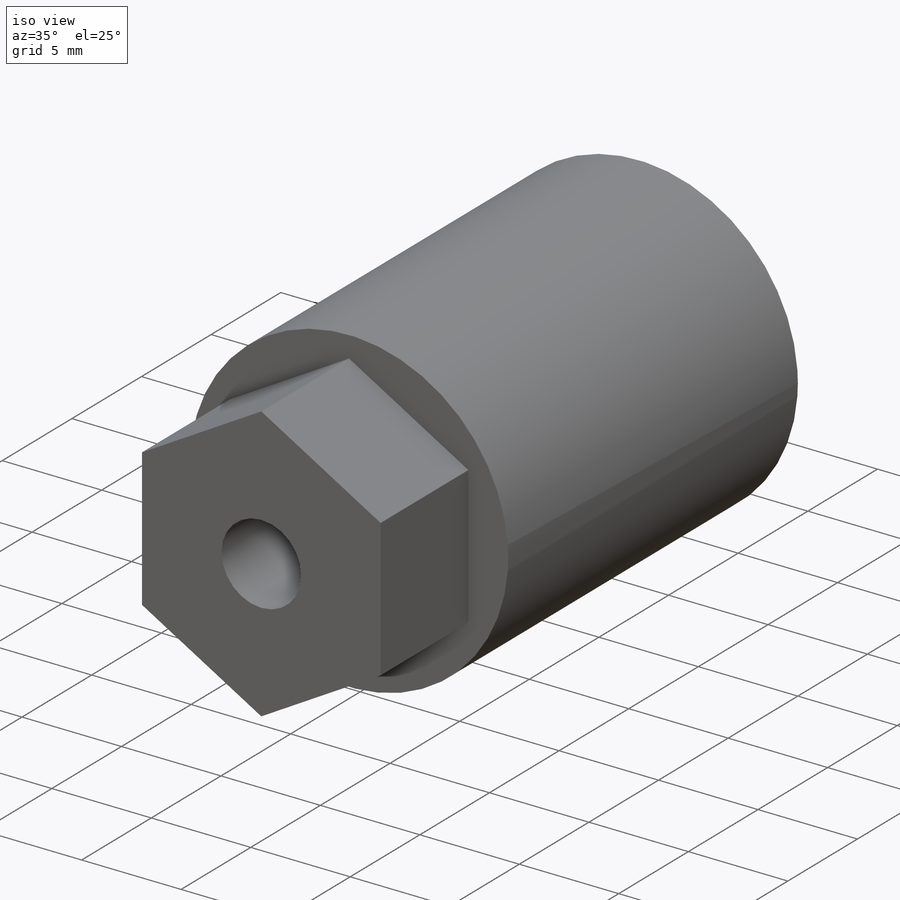
[diagram: iso view]
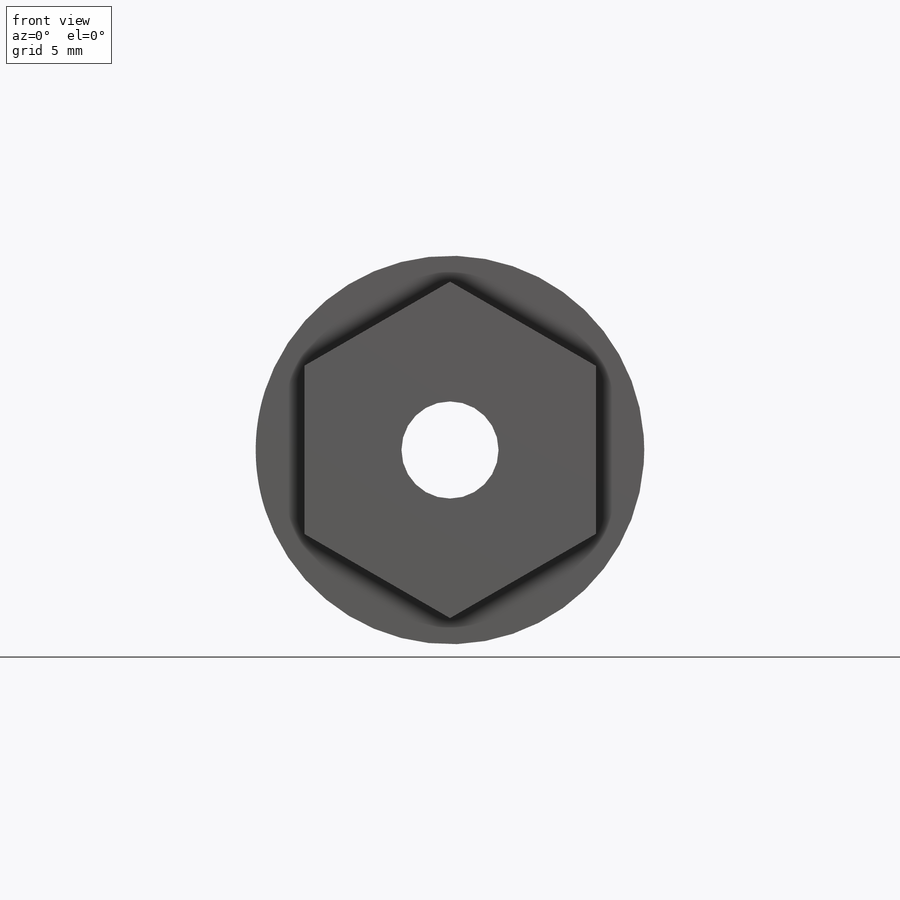
[diagram: front view]
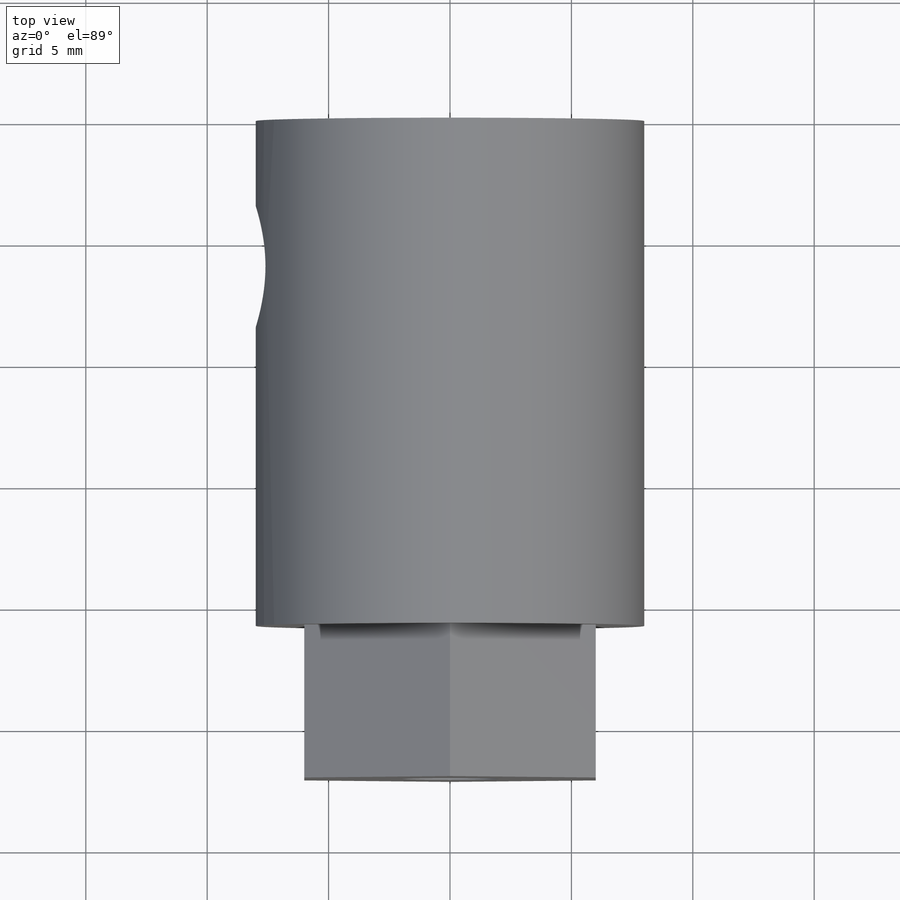
[diagram: top view]
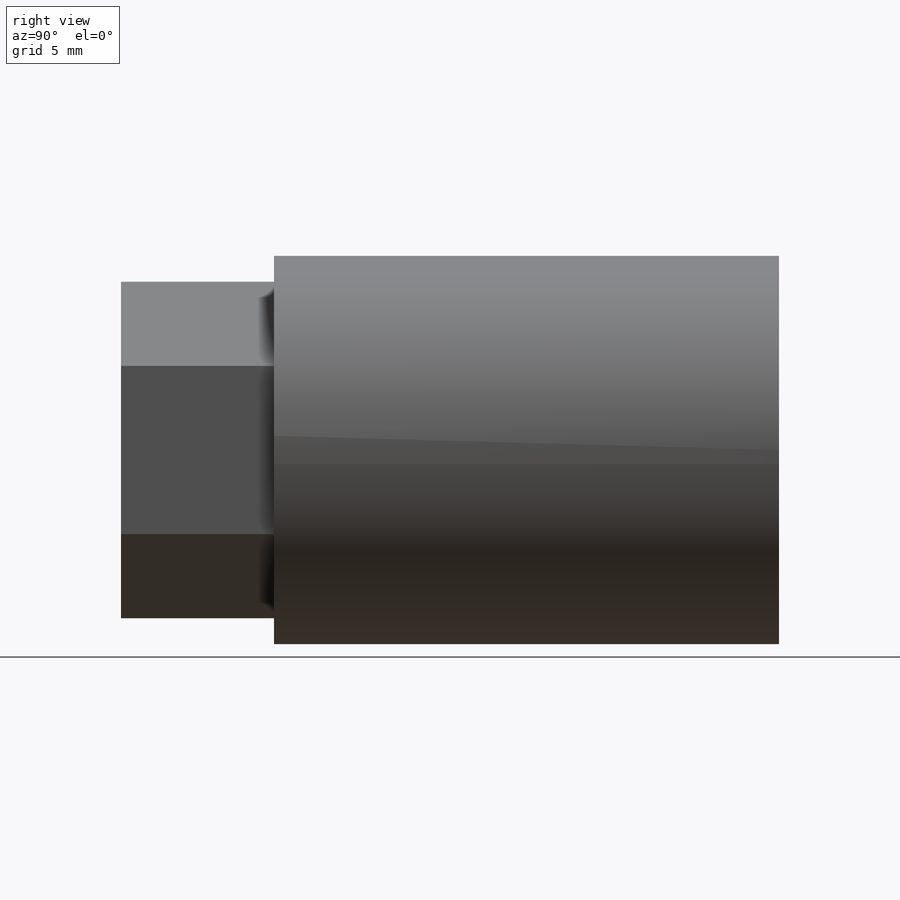
[diagram: right view]
SOLIDWORKS PART (.sldprt)
format: sldprt  version: not decoded by parser v0  size: 172,544 bytes
history: native  units: mm
features: sketch x4, plane x3, extrude x3, material x1, cut_extrude x1 (+13 scaffold rows collapsed)
feature tree (25):
  scaffold x13  (default folders/planes/origin — collapsed)
  material  "Material <sin especificar>"
  plane  "Alzado"
  plane  "Planta"
  plane  "Vista lateral"
  sketch  "Croquis1"  dims[D1=16.0mm D2=6.2mm]
  extrude  "Saliente-Extruir1"  Depth=20.8mm
  sketch  "Croquis2"  dims[D2=4.0mm D1=0.0mm]
  extrude  "Saliente-Extruir2"  Depth=2.2mm
  sketch  "Croquis3"  dims[D1=12.0mm]
  extrude  "Saliente-Extruir3"  Depth=6.3mm
  sketch  "Croquis4"  dims[D1=5.0mm D2=3.5mm]
  cut_extrude  "Cortar-Extruir1"  [1 undecoded]
decode coverage: 7 of 8 modeling features carry decoded parameters
note: 1 parameter value undecoded
note: suppression state not decoded; provenance and decode notes live in map.json
